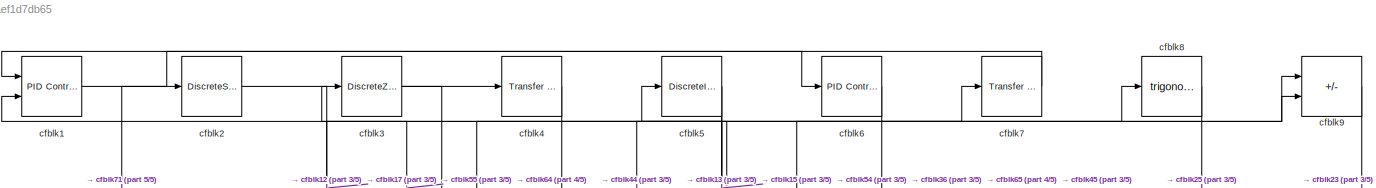
[diagram: root canvas - part 1/5, full width, top band]
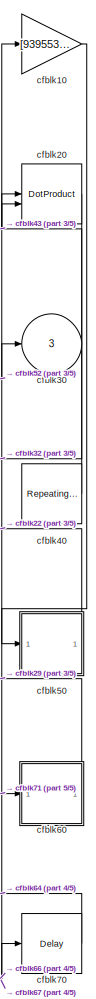
[diagram: root canvas - part 2/5, right side, full height]
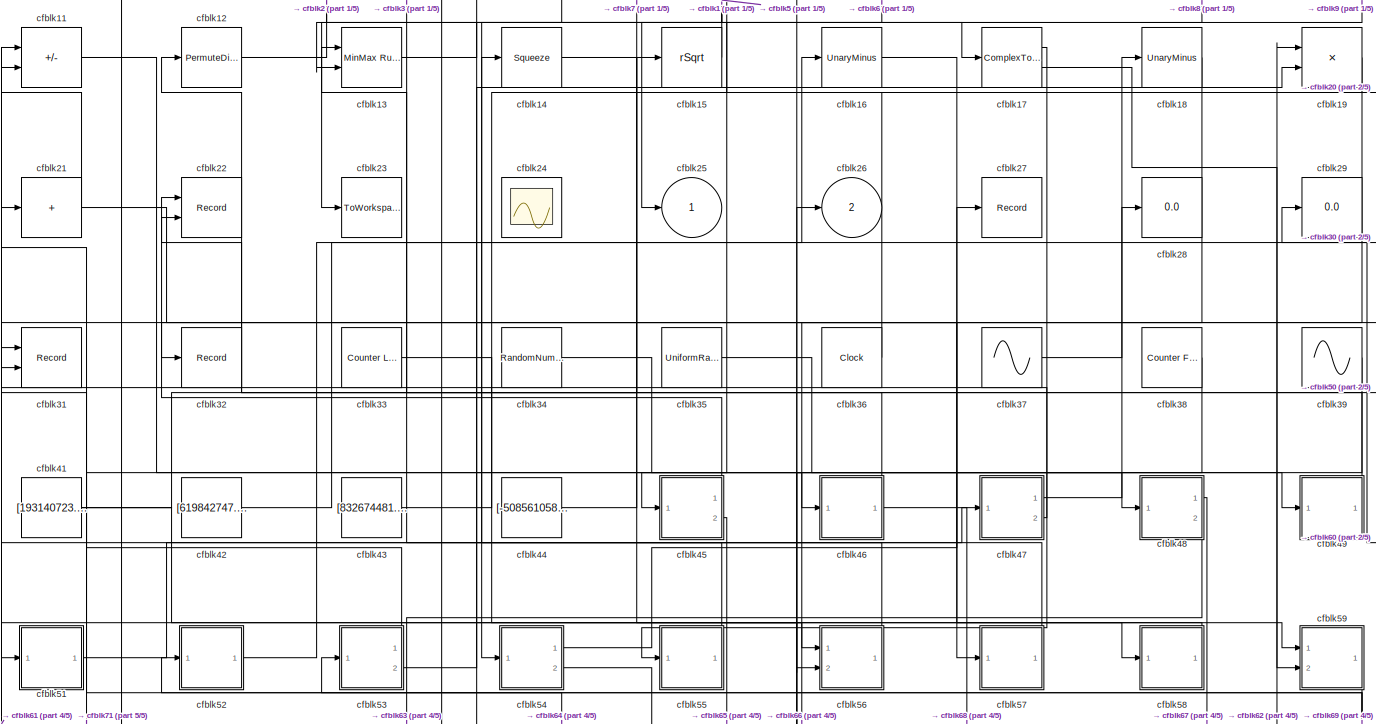
[diagram: root canvas - part 3/5, full width, middle band]
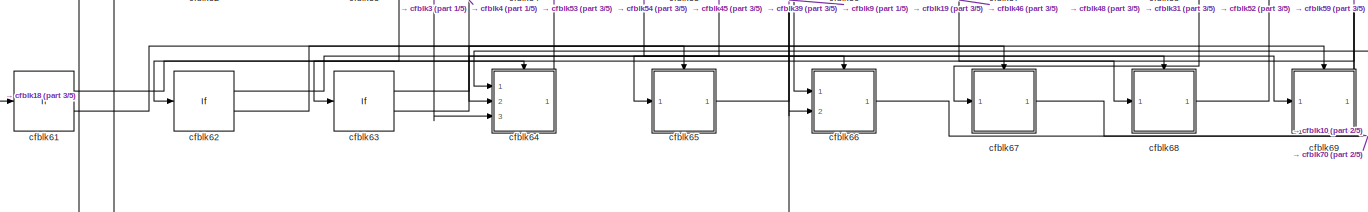
[diagram: root canvas - part 4/5, full width, bottom band]
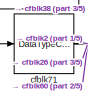
[diagram: root canvas - part 5/5, bottom left region]
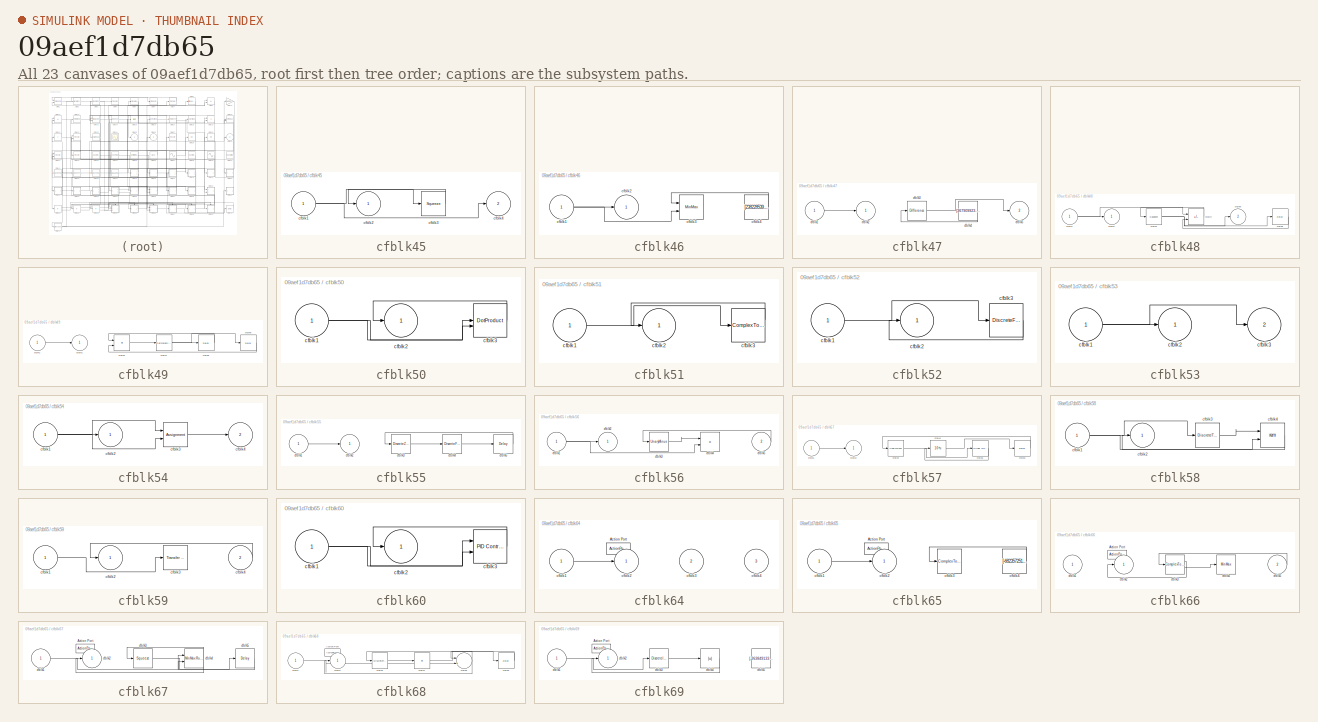
[diagram: thumbnail index - all 23 canvases of the model, root first then tree order]
MODEL slx_09aef1d7db65
KIND model
CONFIG AbsTol = auto
CONFIG EnableMultiTasking = off
CONFIG FixedStep = auto
CONFIG MaxStep = auto
CONFIG MinStep = auto
CONFIG RelTol = 1e-3
CONFIG SampleTimeConstraint = Unconstrained
CONFIG SolverName = VariableStepAuto
CONFIG StartTime = 0.0
CONFIG StopTime = 10.0
BLOCK [Reference] cfblk1  REF=slpidlib/PID Controller (2DOF)
  Ports = [2, 1]
  SourceBlock = slpidlib/PID Controller (2DOF)
  SourceProductBaseCode = SL
  SourceType = PID 2dof
BLOCK [Gain] cfblk10
  Gain = [939553670.952264]
BLOCK [Sum] cfblk11
  IconShape = rectangular
  Inputs = +-
  Ports = [2, 1]
BLOCK [PermuteDimensions] cfblk12
BLOCK [Reference] cfblk13  REF=simulink/Math
Operations/MinMax
Running
Resettable
  Ports = [2, 1]
  SourceBlock = simulink/Math\nOperations/MinMax\nRunning\nResettable
  SourceProductBaseCode = SL
  SourceType = MinMax Running Resettable
BLOCK [Squeeze] cfblk14
BLOCK [Sqrt] cfblk15
  AlgorithmType = Newton-Raphson
  Operator = rSqrt
BLOCK [UnaryMinus] cfblk16
BLOCK [ComplexToMagnitudeAngle] cfblk17
  Ports = [1, 2]
BLOCK [UnaryMinus] cfblk18
BLOCK [Product] cfblk19
  Inputs = **
  Ports = [2, 1]
BLOCK [DiscreteStateSpace] cfblk2
BLOCK [DotProduct] cfblk20
  OutDataTypeStr = Inherit: Inherit via internal rule
BLOCK [Sum] cfblk21
  IconShape = rectangular
  Inputs = +
  Ports = [1, 1]
BLOCK [Record] cfblk22
  CompatibilityTag = XY
  FileSettingsInternal = {"entries":[{"content":{"excelSettings":{"content":{},"type":"Streamout.ExcelSettings"}},"type":"Streamout.FileSettingStorage","uuid":"2dc00ac4-869d-48c6-abfe-2d9903f0ba02"}],"packageUris":["http://schema.mathworks.com/mf0/streamout_blocks/R2020a"],"version":"1.0"}
  Layout = [1 1]
  Ports = [2]
  SignalsInternal = {"entries":[{"content":{"signals":[{"content":{"blockPath":["sampleModel239/cfblk22"],"channel":[],"dimensions":[1],"domain":"sampleModel239/cfblk22","lineColor":"#a2142f","plots":[1],"port":1,"sid":[""],"signalID":9407,"signalName":"cfblk45:1"},"type":"RecordBlkView.Signal","uuid":"bc1f1d9f-1215-4f32-9bd5-90b7206a9bdb"},{"content":{"blockPath":["sampleModel239/cfblk22"],"channel":[],"dimensions":...<+385ch>
  VisualizationBindings = {"xyplotplugin":{"info":[{"series":[{"bindingParametersList":[{"parameter":"X-Axis","signalID":9407,"signalName":"cfblk45:1"},{"parameter":"Y-Axis","signalID":9411,"signalName":"cfblk50"}],"seriesID":24941}],"subplotID":1}]}}
BLOCK [ToWorkspace] cfblk23
  FixptAsFi = on
  MaxDataPoints = inf
  Ports = [1]
  SampleTime = -1
  SaveFormat = Timeseries
  VariableName = jhstolp
BLOCK [Scope] cfblk24
  Floating = on
  NumInputPorts = 1
  Ports = []
BLOCK [Outport] cfblk25
BLOCK [Outport] cfblk26
  Port = 2
BLOCK [Record] cfblk27
  FileSettingsInternal = {"entries":[{"content":{"excelSettings":{"content":{},"type":"Streamout.ExcelSettings"}},"type":"Streamout.FileSettingStorage","uuid":"f3229e7e-27fb-4f70-8ae0-8ec4d4cb909e"}],"packageUris":["http://schema.mathworks.com/mf0/streamout_blocks/R2020a"],"version":"1.0"}
  Ports = [1]
  SignalsInternal = {"entries":[{"content":{"signals":[{"content":{"blockPath":["sampleModel239/cfblk27"],"channel":[],"dimensions":[1],"domain":"sampleModel239/cfblk27","lineColor":"#b746ff","plots":[1],"port":1,"sid":[""],"signalID":9415,"signalName":"cfblk54:1"},"type":"RecordBlkView.Signal","uuid":"4a5fe51b-8cfd-4b63-9e44-791aa2cb37af"}]},"type":"RecordBlkView.InputSignals","uuid":"29fafc56-9cd4-4651-8a49-48173de...<+99ch>
  VisualizationBindings = {"sparklinesplugin":{"info":[{"bindingParametersList":[],"subplotID":1}]}}
BLOCK [Display] cfblk28
  Decimation = 1
  Ports = [1]
BLOCK [Display] cfblk29
  Decimation = 1
  Ports = [1]
BLOCK [DiscreteZeroPole] cfblk3
  Gain = 1
  Poles = [0 0.5]
BLOCK [Outport] cfblk30
  Port = 3
BLOCK [Record] cfblk31
  CompatibilityTag = XY
  FileSettingsInternal = {"entries":[{"content":{"excelSettings":{"content":{},"type":"Streamout.ExcelSettings"}},"type":"Streamout.FileSettingStorage","uuid":"7e711e1d-a085-4da6-a610-a34420e2c81a"}],"packageUris":["http://schema.mathworks.com/mf0/streamout_blocks/R2020a"],"version":"1.0"}
  Layout = [1 1]
  Ports = [2]
  SignalsInternal = {"entries":[{"content":{"signals":[{"content":{"blockPath":["sampleModel239/cfblk31"],"channel":[],"dimensions":[1],"domain":"sampleModel239/cfblk31","lineColor":"#a2142f","plots":[1],"port":1,"sid":[""],"signalID":9419,"signalName":"cfblk47:2"},"type":"RecordBlkView.Signal","uuid":"3ad7ea52-82c9-4d7f-a765-90cce9fd0216"},{"content":{"blockPath":["sampleModel239/cfblk31"],"channel":[],"dimensions":...<+385ch>
  VisualizationBindings = {"xyplotplugin":{"info":[{"series":[{"bindingParametersList":[{"parameter":"X-Axis","signalID":9419,"signalName":"cfblk47:2"},{"parameter":"Y-Axis","signalID":9423,"signalName":"cfblk69"}],"seriesID":16923}],"subplotID":1}]}}
BLOCK [Record] cfblk32
  FileSettingsInternal = {"entries":[{"content":{"excelSettings":{"content":{},"type":"Streamout.ExcelSettings"}},"type":"Streamout.FileSettingStorage","uuid":"afe0f59e-2501-45fa-a475-26e16caf034f"}],"packageUris":["http://schema.mathworks.com/mf0/streamout_blocks/R2020a"],"version":"1.0"}
  Ports = [1]
  SignalsInternal = {"entries":[{"content":{"signals":[{"content":{"blockPath":["sampleModel239/cfblk32"],"channel":[],"dimensions":[1],"domain":"sampleModel239/cfblk32","lineColor":"#fe330a","plots":[1],"port":1,"sid":[""],"signalID":9427,"signalName":"cfblk20"},"type":"RecordBlkView.Signal","uuid":"2bdc5b92-4265-4bc7-a595-26f17ac7d3b8"}]},"type":"RecordBlkView.InputSignals","uuid":"280ed801-11df-47e9-8e9f-9bdf57eb7...<+97ch>
  VisualizationBindings = {"sparklinesplugin":{"info":[{"bindingParametersList":[],"subplotID":1}]}}
BLOCK [Reference] cfblk33  REF=simulink/Sources/Counter
Limited
  Ports = [0, 1]
  SourceBlock = simulink/Sources/Counter\nLimited
  SourceProductBaseCode = SL
  SourceType = Counter Limited
BLOCK [RandomNumber] cfblk34
  Mean = [57687.306812]
  SampleTime = 0.1
  Seed = [896711327.000000]
  Variance = [8739.534801]
BLOCK [UniformRandomNumber] cfblk35
  Maximum = [7849235341.370959]
  Minimum = [-7054977294.480972]
  SampleTime = 0.1
  Seed = [77204130.000000]
BLOCK [Clock] cfblk36
BLOCK [Sin] cfblk37
  Amplitude = [-892922835.024018]
  Bias = [596116018.825111]
  Ports = [0, 1]
  SampleTime = 0
BLOCK [Reference] cfblk38  REF=simulink/Sources/Counter
Free-Running
  Ports = [0, 1]
  SourceBlock = simulink/Sources/Counter\nFree-Running
  SourceProductBaseCode = SL
  SourceType = Counter Free-Running
BLOCK [Sin] cfblk39
  Amplitude = [523227511.966977]
  Bias = [318206776.126036]
  Ports = [0, 1]
  SampleTime = 0
BLOCK [Reference] cfblk4  REF=simulink/Discrete/Transfer Fcn
First Order
  Ports = [1, 1]
  SourceBlock = simulink/Discrete/Transfer Fcn\nFirst Order
  SourceProductBaseCode = SL
  SourceType = First Order Transfer Fcn
BLOCK [Reference] cfblk40  REF=simulink/Sources/Repeating
Sequence
Stair
  Ports = [0, 1]
  SourceBlock = simulink/Sources/Repeating\nSequence\nStair
  SourceProductBaseCode = SL
  SourceType = Repeating Sequence Stair
BLOCK [Constant] cfblk41
  SampleTime = 1
  Value = [193140723.263596]
BLOCK [Constant] cfblk42
  SampleTime = 1
  Value = [619842747.255610]
BLOCK [Constant] cfblk43
  SampleTime = 1
  Value = [832674481.643650]
BLOCK [Constant] cfblk44
  SampleTime = 1
  Value = [-508561058.716562]
BLOCK [SubSystem] cfblk45
  Ports = [1, 2]
  RequestExecContextInheritance = off
BLOCK [Inport] cfblk45/cfblk1
BLOCK [Outport] cfblk45/cfblk2
BLOCK [Squeeze] cfblk45/cfblk3
BLOCK [Outport] cfblk45/cfblk4
  Port = 2
BLOCK [SubSystem] cfblk46
  Ports = [1, 1]
  RequestExecContextInheritance = off
BLOCK [Inport] cfblk46/cfblk1
BLOCK [Outport] cfblk46/cfblk2
BLOCK [MinMax] cfblk46/cfblk3
  Inputs = 2
  Ports = [2, 1]
BLOCK [Constant] cfblk46/cfblk4
  SampleTime = 1
  Value = [238228539.710334]
BLOCK [SubSystem] cfblk47
  Ports = [1, 2]
  RequestExecContextInheritance = off
BLOCK [Inport] cfblk47/cfblk1
BLOCK [Outport] cfblk47/cfblk2
BLOCK [Reference] cfblk47/cfblk3  REF=simulink/Discrete/Difference
  Ports = [1, 1]
  SourceBlock = simulink/Discrete/Difference
  SourceProductBaseCode = SL
  SourceType = Difference
BLOCK [Constant] cfblk47/cfblk4
  SampleTime = 1
  Value = [367909923.514528]
BLOCK [Outport] cfblk47/cfblk5
  Port = 2
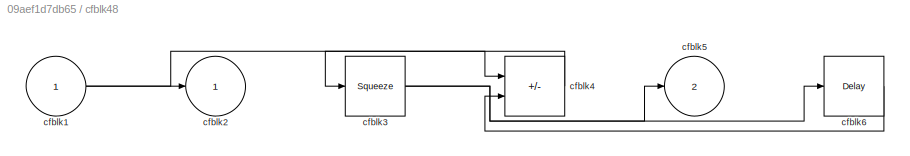
BLOCK [SubSystem] cfblk48
  Ports = [1, 2]
  RequestExecContextInheritance = off
BLOCK [Inport] cfblk48/cfblk1
BLOCK [Outport] cfblk48/cfblk2
BLOCK [Squeeze] cfblk48/cfblk3
BLOCK [Sum] cfblk48/cfblk4
  IconShape = rectangular
  Inputs = +-
  Ports = [2, 1]
BLOCK [Outport] cfblk48/cfblk5
  Port = 2
BLOCK [Delay] cfblk48/cfblk6
  InputPortMap = u0
  Ports = [1, 1]
  SampleTime = 1
BLOCK [SubSystem] cfblk49
  Ports = [1, 1]
  RequestExecContextInheritance = off
BLOCK [Inport] cfblk49/cfblk1
BLOCK [Outport] cfblk49/cfblk2
BLOCK [Product] cfblk49/cfblk3
  Ports = [2, 1]
BLOCK [PermuteDimensions] cfblk49/cfblk4
BLOCK [Delay] cfblk49/cfblk5
  InputPortMap = u0
  Ports = [1, 1]
  SampleTime = 1
BLOCK [Delay] cfblk49/cfblk6
  InputPortMap = u0
  Ports = [1, 1]
  SampleTime = 1
BLOCK [DiscreteIntegrator] cfblk5
  ICPrevOutput = DiscIntNeverNeededParam
  ICPrevScaledInput = DiscIntNeverNeededParam
  InitialConditionSetting = Auto
  Ports = [1, 1]
BLOCK [SubSystem] cfblk50
  Ports = [1, 1]
  RequestExecContextInheritance = off
BLOCK [Inport] cfblk50/cfblk1
BLOCK [Outport] cfblk50/cfblk2
BLOCK [DotProduct] cfblk50/cfblk3
  OutDataTypeStr = Inherit: Inherit via internal rule
BLOCK [SubSystem] cfblk51
  Ports = [1, 1]
  RequestExecContextInheritance = off
BLOCK [Inport] cfblk51/cfblk1
BLOCK [Outport] cfblk51/cfblk2
BLOCK [ComplexToMagnitudeAngle] cfblk51/cfblk3
  Ports = [1, 2]
BLOCK [SubSystem] cfblk52
  Ports = [1, 1]
  RequestExecContextInheritance = off
BLOCK [Inport] cfblk52/cfblk1
BLOCK [Outport] cfblk52/cfblk2
BLOCK [DiscreteFir] cfblk52/cfblk3
  InputPortMap = u0
  OutputPortMap = o0
  Ports = [1, 1]
  SampleTime = 1
BLOCK [SubSystem] cfblk53
  Ports = [1, 2]
  RequestExecContextInheritance = off
BLOCK [Inport] cfblk53/cfblk1
BLOCK [Outport] cfblk53/cfblk2
BLOCK [Outport] cfblk53/cfblk3
  Port = 2
BLOCK [SubSystem] cfblk54
  Ports = [1, 2]
  RequestExecContextInheritance = off
BLOCK [Inport] cfblk54/cfblk1
BLOCK [Outport] cfblk54/cfblk2
BLOCK [Assignment] cfblk54/cfblk3
  DiagnosticForDimensions = Warning
  IndexOptions = Index vector (dialog)
  Indices = 1
  OutputSizes = 1
  Ports = [2, 1]
BLOCK [Outport] cfblk54/cfblk4
  Port = 2
BLOCK [SubSystem] cfblk55
  Ports = [1, 1]
  RequestExecContextInheritance = off
BLOCK [Inport] cfblk55/cfblk1
BLOCK [Outport] cfblk55/cfblk2
BLOCK [DiscreteZeroPole] cfblk55/cfblk3
  Gain = 1
  Poles = [0 0.5]
BLOCK [DiscreteFir] cfblk55/cfblk4
  InputPortMap = u0
  OutputPortMap = o0
  Ports = [1, 1]
  SampleTime = 1
BLOCK [Delay] cfblk55/cfblk5
  InputPortMap = u0
  Ports = [1, 1]
  SampleTime = 1
BLOCK [SubSystem] cfblk56
  Ports = [2, 1]
  RequestExecContextInheritance = off
BLOCK [Inport] cfblk56/cfblk1
BLOCK [Outport] cfblk56/cfblk2
BLOCK [UnaryMinus] cfblk56/cfblk3
BLOCK [Product] cfblk56/cfblk4
  Ports = [2, 1]
BLOCK [Inport] cfblk56/cfblk5
  Port = 2
BLOCK [SubSystem] cfblk57
  Ports = [1, 1]
  RequestExecContextInheritance = off
BLOCK [Inport] cfblk57/cfblk1
BLOCK [Outport] cfblk57/cfblk2
BLOCK [UnaryMinus] cfblk57/cfblk3
BLOCK [Math] cfblk57/cfblk4
  Operator = 10^u
  Ports = [1, 1]
BLOCK [Reference] cfblk57/cfblk5  REF=simulink/Math
Operations/Slider
Gain
  Ports = [1, 1]
  SourceBlock = simulink/Math\nOperations/Slider\nGain
  SourceProductBaseCode = SL
  SourceType = Slider Gain
BLOCK [Delay] cfblk57/cfblk6
  InputPortMap = u0
  Ports = [1, 1]
  SampleTime = 1
BLOCK [SubSystem] cfblk58
  Ports = [1, 1]
  RequestExecContextInheritance = off
BLOCK [Inport] cfblk58/cfblk1
BLOCK [Outport] cfblk58/cfblk2
BLOCK [DiscreteTransferFcn] cfblk58/cfblk3
  InputPortMap = u0
  Ports = [1, 1]
  SampleTime = 1
BLOCK [Math] cfblk58/cfblk4
  Operator = rem
  Ports = [2, 1]
BLOCK [SubSystem] cfblk59
  Ports = [2, 1]
  RequestExecContextInheritance = off
BLOCK [Inport] cfblk59/cfblk1
BLOCK [Outport] cfblk59/cfblk2
BLOCK [Reference] cfblk59/cfblk3  REF=simulink/Discrete/Transfer Fcn
Lead or Lag
  Ports = [1, 1]
  SourceBlock = simulink/Discrete/Transfer Fcn\nLead or Lag
  SourceProductBaseCode = SL
  SourceType = Lead or Lag Compensator
BLOCK [Inport] cfblk59/cfblk4
  Port = 2
BLOCK [Reference] cfblk6  REF=slpidlib/PID Controller
  Ports = [1, 1]
  SourceBlock = slpidlib/PID Controller
  SourceProductBaseCode = SL
  SourceType = PID 1dof
BLOCK [SubSystem] cfblk60
  Ports = [1, 1]
  RequestExecContextInheritance = off
BLOCK [Inport] cfblk60/cfblk1
BLOCK [Outport] cfblk60/cfblk2
BLOCK [Reference] cfblk60/cfblk3  REF=slpidlib/PID Controller (2DOF)
  Ports = [2, 1]
  SourceBlock = slpidlib/PID Controller (2DOF)
  SourceProductBaseCode = SL
  SourceType = PID 2dof
BLOCK [If] cfblk61
  IfExpression = u1 >= 0
  Ports = [1, 2]
  SampleTime = 1
BLOCK [If] cfblk62
  IfExpression = u1 >= 0
  Ports = [1, 2]
  SampleTime = 1
BLOCK [If] cfblk63
  IfExpression = u1 >= 0
  Ports = [1, 2]
  SampleTime = 1
BLOCK [SubSystem] cfblk64
  Ports = [3, 1, 0, 0, 0, 0, 0, 1]
  RequestExecContextInheritance = off
  TreatAsAtomicUnit = on
BLOCK [ActionPort] cfblk64/Action Port
  ActionPortLabel = if(u1 >= 0)
BLOCK [Inport] cfblk64/cfblk1
BLOCK [Outport] cfblk64/cfblk2
BLOCK [Inport] cfblk64/cfblk3
  Port = 2
BLOCK [Inport] cfblk64/cfblk4
  Port = 3
BLOCK [SubSystem] cfblk65
  Ports = [1, 1, 0, 0, 0, 0, 0, 1]
  RequestExecContextInheritance = off
  TreatAsAtomicUnit = on
BLOCK [ActionPort] cfblk65/Action Port
  ActionPortLabel = else
BLOCK [Inport] cfblk65/cfblk1
BLOCK [Outport] cfblk65/cfblk2
BLOCK [ComplexToMagnitudeAngle] cfblk65/cfblk3
  Ports = [1, 2]
BLOCK [Constant] cfblk65/cfblk4
  SampleTime = 1
  Value = [-682357251.743183]
BLOCK [SubSystem] cfblk66
  Ports = [2, 1, 0, 0, 0, 0, 0, 1]
  RequestExecContextInheritance = off
  TreatAsAtomicUnit = on
BLOCK [ActionPort] cfblk66/Action Port
  ActionPortLabel = if(u1 >= 0)
BLOCK [Inport] cfblk66/cfblk1
BLOCK [Outport] cfblk66/cfblk2
BLOCK [ComplexToRealImag] cfblk66/cfblk3
  Ports = [1, 2]
BLOCK [MinMax] cfblk66/cfblk4
  Ports = [1, 1]
BLOCK [Inport] cfblk66/cfblk5
  Port = 2
BLOCK [SubSystem] cfblk67
  Ports = [1, 1, 0, 0, 0, 0, 0, 1]
  RequestExecContextInheritance = off
  TreatAsAtomicUnit = on
BLOCK [ActionPort] cfblk67/Action Port
  ActionPortLabel = else
BLOCK [Inport] cfblk67/cfblk1
BLOCK [Outport] cfblk67/cfblk2
BLOCK [Squeeze] cfblk67/cfblk3
BLOCK [Reference] cfblk67/cfblk4  REF=simulink/Math
Operations/MinMax
Running
Resettable
  Ports = [2, 1]
  SourceBlock = simulink/Math\nOperations/MinMax\nRunning\nResettable
  SourceProductBaseCode = SL
  SourceType = MinMax Running Resettable
BLOCK [Delay] cfblk67/cfblk5
  InputPortMap = u0
  Ports = [1, 1]
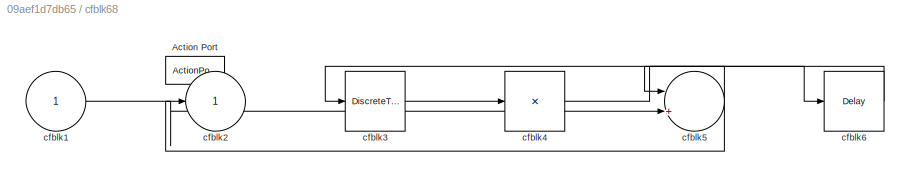
BLOCK [SubSystem] cfblk68
  Ports = [1, 1, 0, 0, 0, 0, 0, 1]
  RequestExecContextInheritance = off
  TreatAsAtomicUnit = on
BLOCK [ActionPort] cfblk68/Action Port
  ActionPortLabel = if(u1 >= 0)
BLOCK [Inport] cfblk68/cfblk1
BLOCK [Outport] cfblk68/cfblk2
BLOCK [DiscreteTransferFcn] cfblk68/cfblk3
  InputPortMap = u0
  Ports = [1, 1]
BLOCK [Product] cfblk68/cfblk4
  Inputs = *
  Ports = [1, 1]
BLOCK [Sum] cfblk68/cfblk5
  Inputs = |++
  Ports = [2, 1]
BLOCK [Delay] cfblk68/cfblk6
  InputPortMap = u0
  Ports = [1, 1]
BLOCK [SubSystem] cfblk69
  Ports = [1, 1, 0, 0, 0, 0, 0, 1]
  RequestExecContextInheritance = off
  TreatAsAtomicUnit = on
BLOCK [ActionPort] cfblk69/Action Port
  ActionPortLabel = else
BLOCK [Inport] cfblk69/cfblk1
BLOCK [Outport] cfblk69/cfblk2
BLOCK [DiscreteIntegrator] cfblk69/cfblk3
  ICPrevOutput = DiscIntNeverNeededParam
  ICPrevScaledInput = DiscIntNeverNeededParam
  InitialConditionSetting = Auto
  Ports = [1, 1]
  SampleTime = -1
BLOCK [Abs] cfblk69/cfblk4
  SaturateOnIntegerOverflow = off
BLOCK [Constant] cfblk69/cfblk5
  SampleTime = 1
  Value = [-263849133.392995]
BLOCK [Reference] cfblk7  REF=simulink/Discrete/Transfer Fcn
Real Zero
  Ports = [1, 1]
  SourceBlock = simulink/Discrete/Transfer Fcn\nReal Zero
  SourceProductBaseCode = SL
  SourceType = Transfer Fcn Real Zero
BLOCK [Delay] cfblk70
  InputPortMap = u0
  Ports = [1, 1]
  SampleTime = 1
BLOCK [DataTypeConversion] cfblk71
  RndMeth = Floor
  SaturateOnIntegerOverflow = off
BLOCK [Trigonometry] cfblk8
  Ports = [1, 1]
BLOCK [Sum] cfblk9
  IconShape = rectangular
  Inputs = +-
  Ports = [2, 1]
LINE cfblk10:1 -> cfblk50:1
LINE cfblk11:1 -> cfblk46:1
LINE cfblk12:1 -> cfblk9:1
LINE cfblk13:1 -> cfblk8:1
LINE cfblk14:1 -> cfblk59:1
LINE cfblk15:1 -> cfblk1:2
LINE cfblk16:1 -> cfblk58:1
LINE cfblk17:1 -> cfblk55:1
LINE cfblk17:2 -> cfblk59:2
LINE cfblk18:1 -> cfblk61:1
LINE cfblk19:1 -> cfblk66:1
LINE cfblk1:1 -> cfblk6:1
LINE cfblk20:1 -> cfblk32:1
NET cfblk21:1 -> cfblk11:2, cfblk57:1
LINE cfblk2:1 -> cfblk17:1
LINE cfblk33:1 -> cfblk56:1
LINE cfblk34:1 -> cfblk49:1
LINE cfblk35:1 -> cfblk48:1
LINE cfblk36:1 -> cfblk5:1
LINE cfblk37:1 -> cfblk18:1
LINE cfblk38:1 -> cfblk71:1
LINE cfblk39:1 -> cfblk66:2
NET cfblk3:1 -> cfblk4:1, cfblk64:3
LINE cfblk40:1 -> cfblk20:2
NET cfblk41:1 -> cfblk15:1, cfblk56:2
LINE cfblk42:1 -> cfblk16:1
LINE cfblk43:1 -> cfblk20:1
LINE cfblk44:1 -> cfblk7:1
NET cfblk45/cfblk1:1 -> cfblk45/cfblk3:1, cfblk45/cfblk4:1
LINE cfblk45/cfblk3:1 -> cfblk45/cfblk2:1
LINE cfblk45:1 -> cfblk22:1
LINE cfblk45:2 -> cfblk65:1
NET cfblk46/cfblk1:1 -> cfblk46/cfblk2:1, cfblk46/cfblk3:2
LINE cfblk46/cfblk4:1 -> cfblk46/cfblk3:1
NET cfblk46:1 -> cfblk13:1, cfblk68:1
LINE cfblk47/cfblk1:1 -> cfblk47/cfblk2:1
LINE cfblk47/cfblk3:1 -> cfblk47/cfblk5:1
LINE cfblk47/cfblk4:1 -> cfblk47/cfblk3:1
LINE cfblk47:1 -> cfblk28:1
LINE cfblk47:2 -> cfblk31:1
NET cfblk48/cfblk1:1 -> cfblk48/cfblk2:1, cfblk48/cfblk4:1
NET cfblk48/cfblk3:1 -> cfblk48/cfblk5:1, cfblk48/cfblk6:1
LINE cfblk48/cfblk4:1 -> cfblk48/cfblk3:1
LINE cfblk48/cfblk6:1 -> cfblk48/cfblk4:2
LINE cfblk48:1 -> cfblk67:1
LINE cfblk48:2 -> cfblk63:1
LINE cfblk49/cfblk1:1 -> cfblk49/cfblk2:1
LINE cfblk49/cfblk3:1 -> cfblk49/cfblk4:1
NET cfblk49/cfblk4:1 -> cfblk49/cfblk5:1, cfblk49/cfblk6:1
LINE cfblk49/cfblk5:1 -> cfblk49/cfblk3:1
LINE cfblk49/cfblk6:1 -> cfblk49/cfblk3:2
LINE cfblk49:1 -> cfblk12:1
LINE cfblk4:1 -> cfblk64:2
NET cfblk50/cfblk1:1 -> cfblk50/cfblk3:1, cfblk50/cfblk3:2
LINE cfblk50/cfblk3:1 -> cfblk50/cfblk2:1
LINE cfblk50:1 -> cfblk22:2
LINE cfblk51/cfblk1:1 -> cfblk51/cfblk3:1
LINE cfblk51/cfblk3:1 -> cfblk51/cfblk2:1
LINE cfblk51:1 -> cfblk47:1
LINE cfblk52/cfblk1:1 -> cfblk52/cfblk3:1
LINE cfblk52/cfblk3:1 -> cfblk52/cfblk2:1
LINE cfblk52:1 -> cfblk30:1
NET cfblk53/cfblk1:1 -> cfblk53/cfblk2:1, cfblk53/cfblk3:1
LINE cfblk53:1 -> cfblk21:1
LINE cfblk53:2 -> cfblk19:2
NET cfblk54/cfblk1:1 -> cfblk54/cfblk2:1, cfblk54/cfblk3:1, cfblk54/cfblk3:2
LINE cfblk54/cfblk3:1 -> cfblk54/cfblk4:1
LINE cfblk54:1 -> cfblk27:1
LINE cfblk54:2 -> cfblk69:1
LINE cfblk55/cfblk1:1 -> cfblk55/cfblk2:1
LINE cfblk55/cfblk3:1 -> cfblk55/cfblk4:1
LINE cfblk55/cfblk4:1 -> cfblk55/cfblk5:1
LINE cfblk55/cfblk5:1 -> cfblk55/cfblk3:1
LINE cfblk55:1 -> cfblk3:1
NET cfblk56/cfblk1:1 -> cfblk56/cfblk2:1, cfblk56/cfblk4:2
LINE cfblk56/cfblk3:1 -> cfblk56/cfblk4:1
LINE cfblk56/cfblk5:1 -> cfblk56/cfblk3:1
LINE cfblk56:1 -> cfblk11:1
LINE cfblk57/cfblk1:1 -> cfblk57/cfblk2:1
LINE cfblk57/cfblk3:1 -> cfblk57/cfblk5:1
LINE cfblk57/cfblk4:1 -> cfblk57/cfblk6:1
LINE cfblk57/cfblk5:1 -> cfblk57/cfblk4:1
LINE cfblk57/cfblk6:1 -> cfblk57/cfblk3:1
LINE cfblk57:1 -> cfblk14:1
NET cfblk58/cfblk1:1 -> cfblk58/cfblk3:1, cfblk58/cfblk4:2
LINE cfblk58/cfblk3:1 -> cfblk58/cfblk4:1
LINE cfblk58/cfblk4:1 -> cfblk58/cfblk2:1
LINE cfblk58:1 -> cfblk51:1
LINE cfblk59/cfblk1:1 -> cfblk59/cfblk3:1
LINE cfblk59/cfblk4:1 -> cfblk59/cfblk2:1
LINE cfblk59:1 -> cfblk62:1
NET cfblk5:1 -> cfblk13:2, cfblk54:1
NET cfblk60/cfblk1:1 -> cfblk60/cfblk3:1, cfblk60/cfblk3:2
LINE cfblk60/cfblk3:1 -> cfblk60/cfblk2:1
LINE cfblk60:1 -> cfblk29:1
LINE cfblk61:1 -> cfblk64:ifaction
LINE cfblk61:2 -> cfblk65:ifaction
LINE cfblk62:1 -> cfblk66:ifaction
LINE cfblk62:2 -> cfblk67:ifaction
LINE cfblk63:1 -> cfblk68:ifaction
LINE cfblk63:2 -> cfblk69:ifaction
LINE cfblk64/cfblk1:1 -> cfblk64/cfblk2:1
LINE cfblk64:1 -> cfblk53:1
LINE cfblk65/cfblk1:1 -> cfblk65/cfblk2:1
LINE cfblk65/cfblk4:1 -> cfblk65/cfblk3:1
LINE cfblk65:1 -> cfblk9:2
LINE cfblk66/cfblk3:1 -> cfblk66/cfblk2:1
LINE cfblk66/cfblk3:2 -> cfblk66/cfblk4:1
LINE cfblk66/cfblk5:1 -> cfblk66/cfblk3:1
LINE cfblk66:1 -> cfblk70:1
LINE cfblk67/cfblk1:1 -> cfblk67/cfblk4:1
LINE cfblk67/cfblk3:1 -> cfblk67/cfblk5:1
NET cfblk67/cfblk4:1 -> cfblk67/cfblk2:1, cfblk67/cfblk3:1
LINE cfblk67/cfblk5:1 -> cfblk67/cfblk4:2
LINE cfblk67:1 -> cfblk10:1
LINE cfblk68/cfblk1:1 -> cfblk68/cfblk5:2
LINE cfblk68/cfblk3:1 -> cfblk68/cfblk4:1
LINE cfblk68/cfblk4:1 -> cfblk68/cfblk6:1
NET cfblk68/cfblk5:1 -> cfblk68/cfblk2:1, cfblk68/cfblk3:1
LINE cfblk68/cfblk6:1 -> cfblk68/cfblk5:1
LINE cfblk68:1 -> cfblk19:1
LINE cfblk69/cfblk1:1 -> cfblk69/cfblk3:1
LINE cfblk69/cfblk3:1 -> cfblk69/cfblk4:1
LINE cfblk69/cfblk4:1 -> cfblk69/cfblk2:1
NET cfblk69:1 -> cfblk31:2, cfblk52:1
LINE cfblk6:1 -> cfblk45:1
LINE cfblk70:1 -> cfblk64:1
NET cfblk71:1 -> cfblk26:1, cfblk2:1, cfblk60:1
LINE cfblk7:1 -> cfblk1:1
LINE cfblk8:1 -> cfblk25:1
LINE cfblk9:1 -> cfblk23:1
note: NET lines group one-source signal fan-out (src -> all destinations, sorted); 1:1 wires keep LINE
